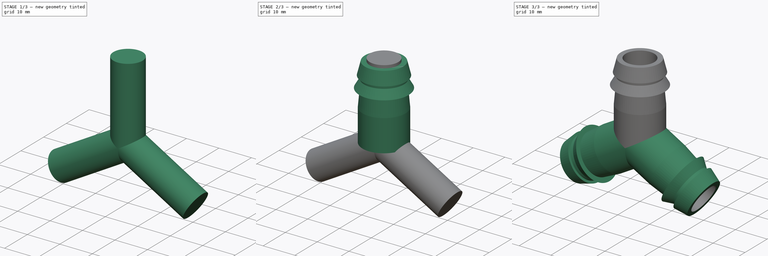
[diagram: build sequence overview — one tinted view per stage of 3, left to right]
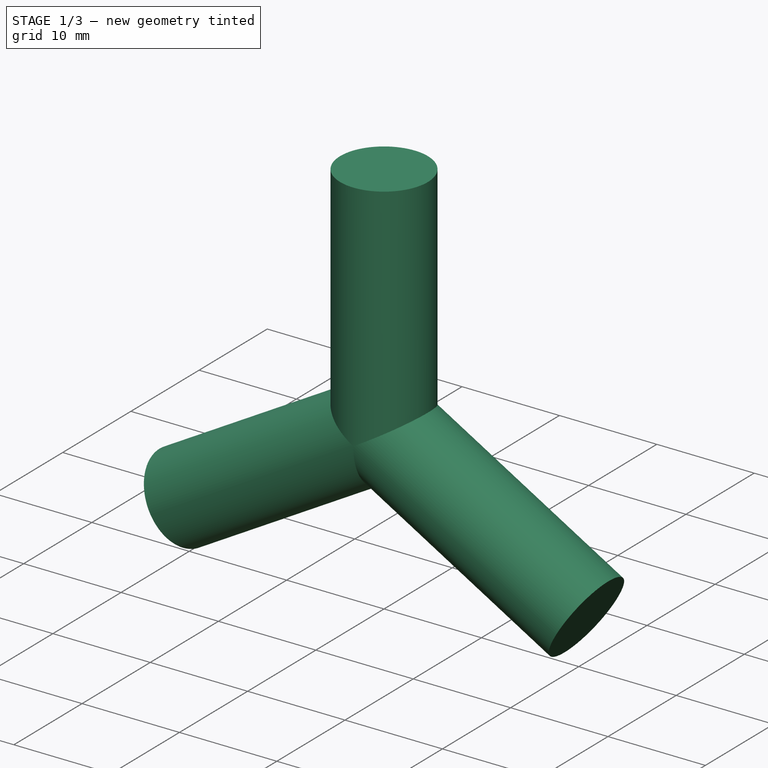
[diagram: stage 1 of 3 — iso view after this stage's code; geometry added in this stage tinted green]
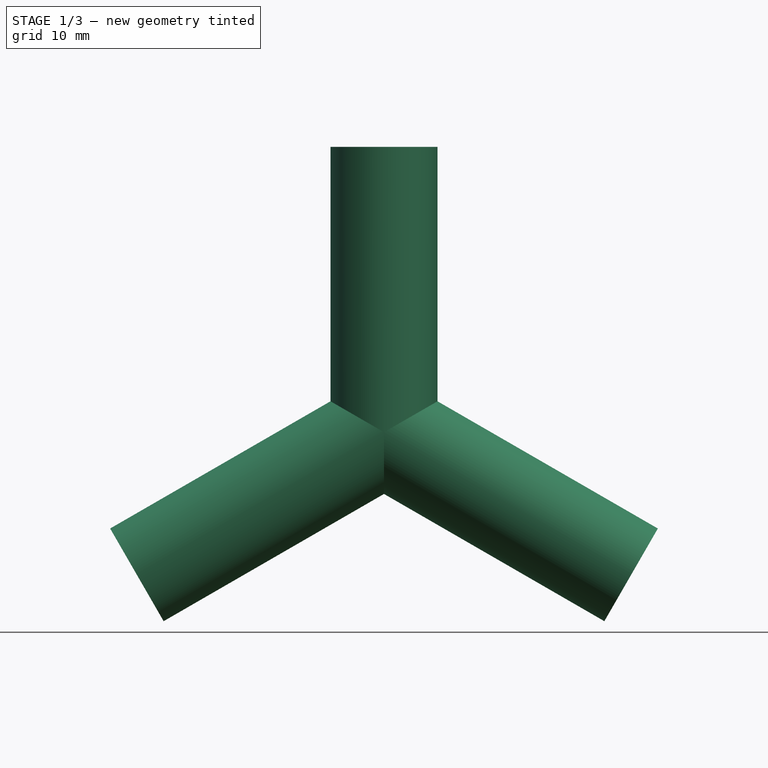
[diagram: stage 1 of 3 — front view after this stage's code; geometry added in this stage tinted green]
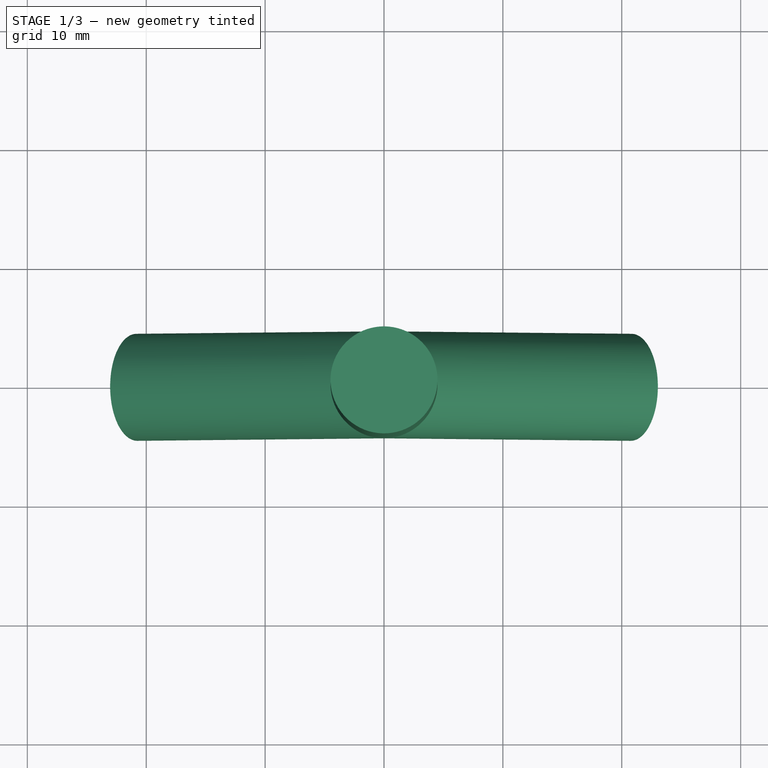
[diagram: stage 1 of 3 — top view after this stage's code; geometry added in this stage tinted green]
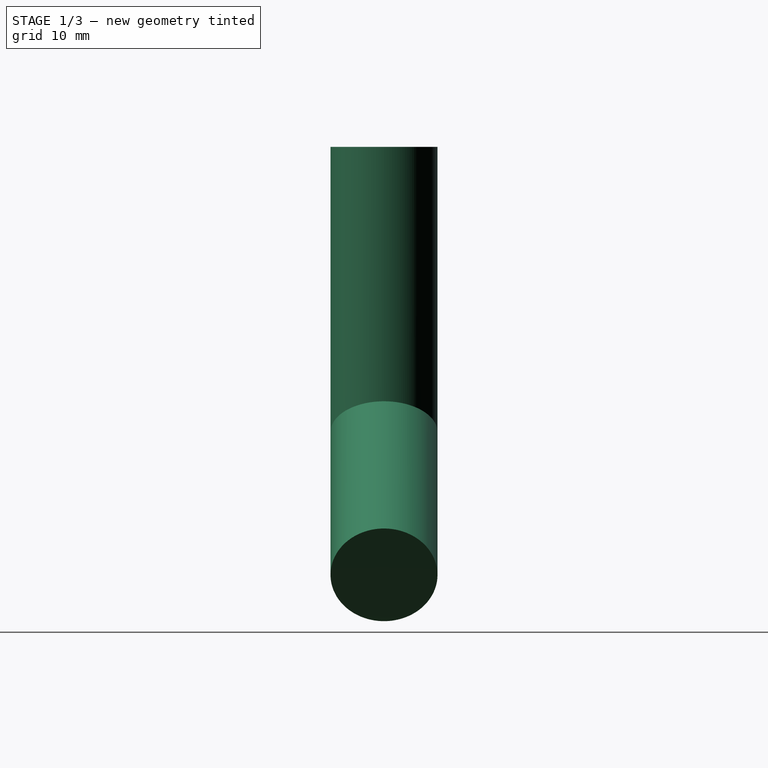
[diagram: stage 1 of 3 — right view after this stage's code; geometry added in this stage tinted green]
FCSTD DOCUMENT  (FreeCAD 2022.430R28641 (Git))
Label: Y split
License: All rights reserved
LicenseURL: http://en.wikipedia.org/wiki/All_rights_reserved
objects: Sketcher::SketchObject×2, PartDesign::Revolution×2, PartDesign::PolarPattern×2, PartDesign::Body×2, Part::Cut×1
note: 17 computed .brp shape members not serialized (recipe doc carries the construction recipe); baked Part::Feature solids carry a one-line shape summary decoded from their .brp

FEATURE [PartDesign::Body] Body
  AutoGroupSolids = false
  ClaimAllChildren = false
  ExportMode = 0
  Group = -> [Sketch,Revolution,PolarPattern]
  Origin = -> Origin
  Tip = -> PolarPattern
  TreeRank = 42
  _ExportChildren = -> [Revolution,PolarPattern]
  _GroupVersion = 1
FEATURE [Sketcher::SketchObject] Sketch001
  FullyConstrained = true
  MapMode = 5
  Placement = pos=(0,0,0) rot=(1,0,0;1.5708rad)
  Support = -> [XZ_Plane001]
  TreeRank = 64
  expr: Constraints[8] = 12mm / 2 - 1.5mm
  sketch-geometry (4):
    g0: LineSegment StartX=4.5 StartY=0 StartZ=0 EndX=4.5 EndY=24 EndZ=0
    g1: LineSegment StartX=4.5 StartY=24 StartZ=0 EndX=0 EndY=24 EndZ=0
    g2: LineSegment StartX=0 StartY=24 StartZ=0 EndX=0 EndY=0 EndZ=0
    g3: LineSegment StartX=0 StartY=0 StartZ=0 EndX=4.5 EndY=0 EndZ=0
  constraints (11):
    c: PointOnObject(g0,g-1)
    c: Vertical(g0)
    c: PointOnObject(g1,g-2)
    c: Horizontal(g1)
    c: Coincident(g1,g2)
    c: Coincident(g2,g-1)
    c: Coincident(g2,g3)
    c: Coincident(g3,g0)
    c: DistanceX(g1) = 4.5
    c: DistanceY(g1) = 24
    c: Coincident(g0,g1)
FEATURE [PartDesign::Revolution] Revolution001
  Angle = 360
  Axis = (0,2e-16,1)
  Base = (0,0,0)
  ClaimChildren = false
  Fit = 0
  FitJoin = 0
  InnerFit = 0
  InnerFitJoin = 0
  NewSolid = false
  Placement = pos=(0,0,0) rot=(1,0,0;1.5708rad)
  Profile = -> Sketch001
  ReferenceAxis = -> Sketch001 [V_Axis]
  Refine = true
  Reversed = true
  Suppress = false
  TreeRank = 65
  _ProfileBasedVersion = 1
FEATURE [PartDesign::PolarPattern] PolarPattern001
  Angle = 360
  Axis = -> Y_Axis001
  BaseFeature = -> Revolution001
  CopyShape = false
  NewSolid = false
  Occurrences = 3
  OriginalSubs = -> [Revolution001]
  Originals = -> [Revolution001]
  ParallelTransform = true
  Placement = pos=(0,0,0) rot=(1,0,0;1.5708rad)
  Refine = true
  SubTransform = true
  Suppress = false
  TreeRank = 66
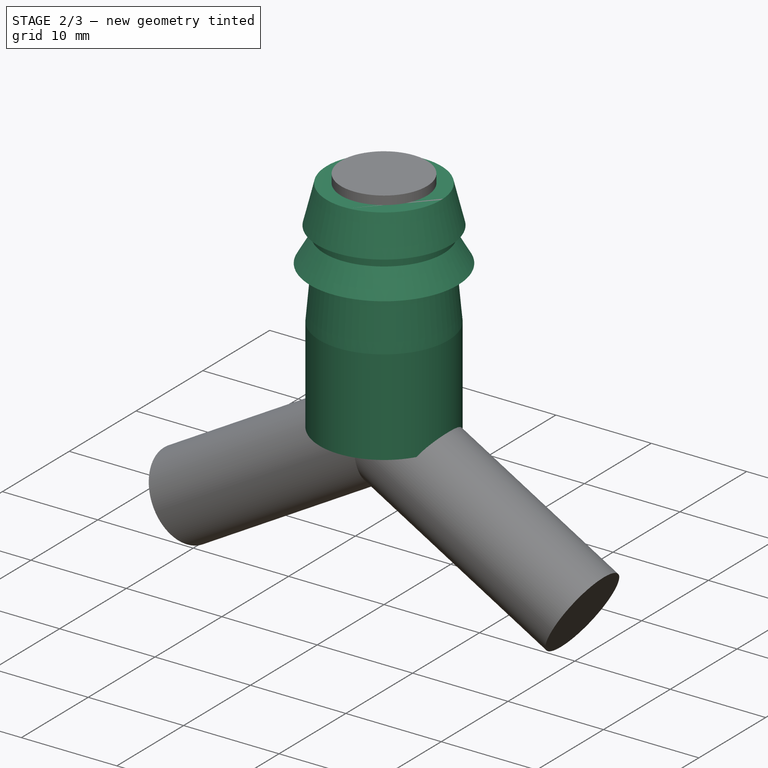
[diagram: stage 2 of 3 — iso view after this stage's code; geometry added in this stage tinted green]
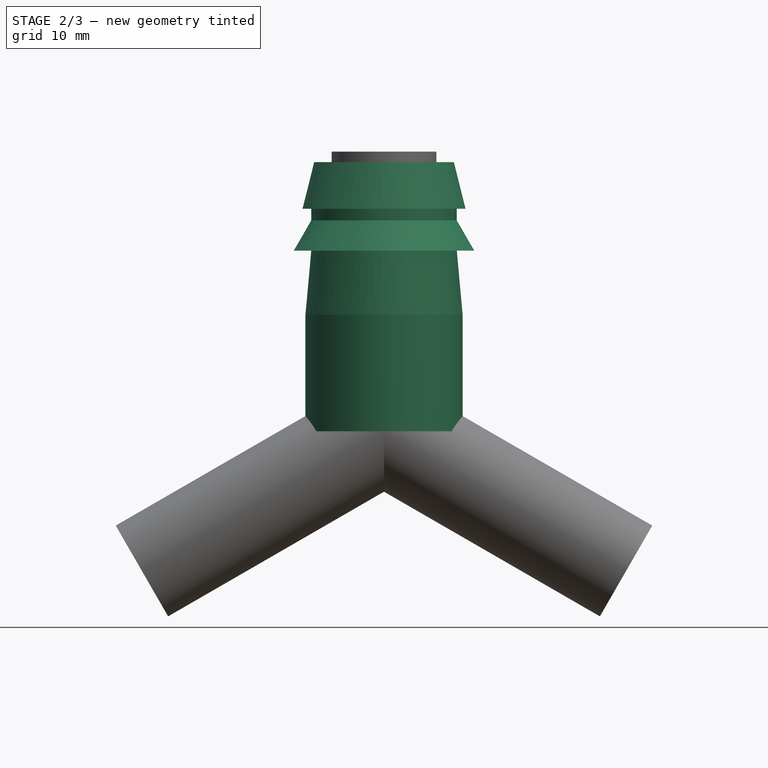
[diagram: stage 2 of 3 — front view after this stage's code; geometry added in this stage tinted green]
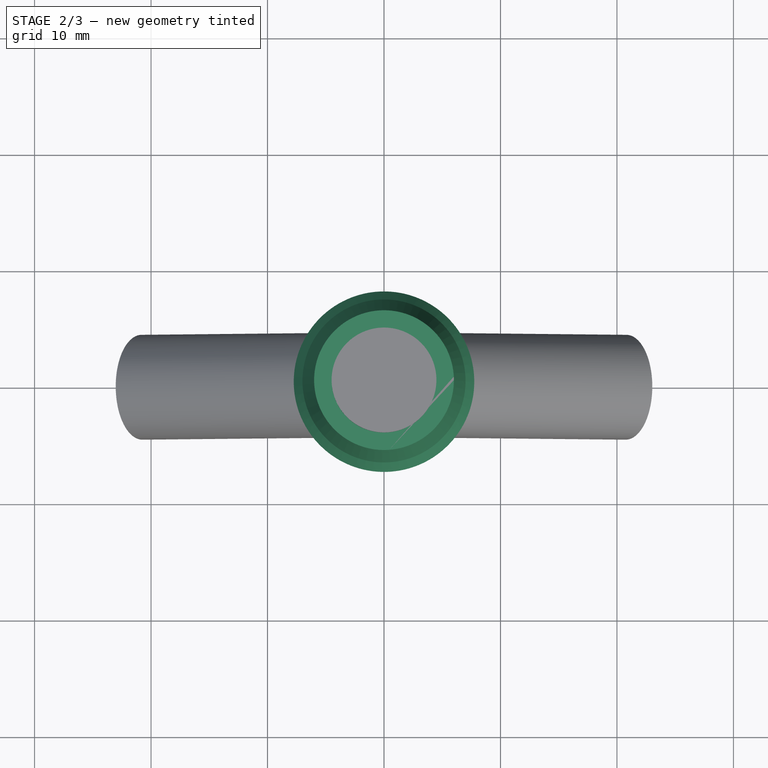
[diagram: stage 2 of 3 — top view after this stage's code; geometry added in this stage tinted green]
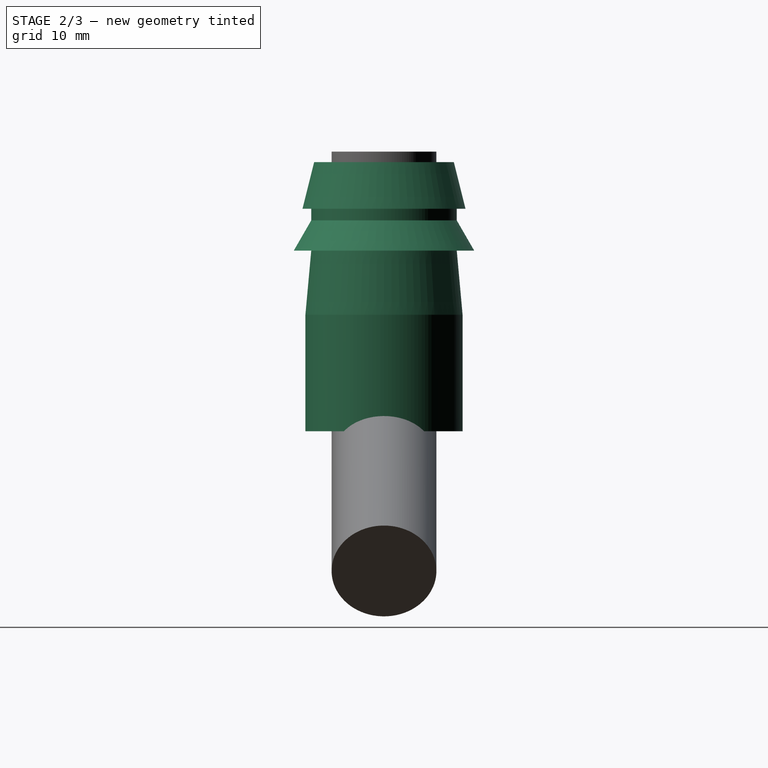
[diagram: stage 2 of 3 — right view after this stage's code; geometry added in this stage tinted green]
FEATURE [Sketcher::SketchObject] Sketch
  FullyConstrained = true
  MapMode = 5
  Placement = pos=(0,0,0) rot=(1,0,0;1.5708rad)
  Support = -> [XZ_Plane]
  TreeRank = 13
  expr: Constraints[19] = 15.5 / 2
  expr: Constraints[23] = 14mm / 2
  expr: Constraints[25] = 12mm / 2
  sketch-geometry (10):
    g0: LineSegment StartX=6.75 StartY=0 StartZ=0 EndX=6.75 EndY=10 EndZ=0
    g1: LineSegment StartX=6.75 StartY=10 StartZ=0 EndX=6.25 EndY=15.5 EndZ=0
    g2: LineSegment StartX=6.25 StartY=15.5 StartZ=0 EndX=7.75 EndY=15.5 EndZ=0
    g3: LineSegment StartX=7.75 StartY=15.5 StartZ=0 EndX=6.25 EndY=18.0981 EndZ=0
    g4: LineSegment StartX=6.25 StartY=18.0981 StartZ=0 EndX=6.25 EndY=19.0981 EndZ=0
    g5: LineSegment StartX=6.25 StartY=19.0981 StartZ=0 EndX=7 EndY=19.0981 EndZ=0
    g6: LineSegment StartX=7 StartY=19.0981 StartZ=0 EndX=6 EndY=23.0981 EndZ=0
    g7: LineSegment StartX=6 StartY=23.0981 StartZ=0 EndX=0 EndY=23.0981 EndZ=0
    g8: LineSegment StartX=0 StartY=23.0981 StartZ=0 EndX=0 EndY=0 EndZ=0
    g9: LineSegment StartX=0 StartY=0 StartZ=0 EndX=6.75 EndY=0 EndZ=0
  constraints (29):
    c: PointOnObject(g0,g-1)
    c: Vertical(g0)
    c: Coincident(g1,g2)
    c: Coincident(g2,g3)
    c: Coincident(g3,g4)
    c: Vertical(g4)
    c: Coincident(g4,g5)
    c: Coincident(g5,g6)
    c: Coincident(g6,g7)
    c: PointOnObject(g7,g-2)
    c: Horizontal(g7)
    c: Coincident(g7,g8)
    c: Coincident(g8,g-1)
    c: Coincident(g8,g9)
    c: Coincident(g9,g0)
    c: DistanceY(g0,g0) = 10
    c: DistanceY(g1,g1) = 5.5
    c: Horizontal(g2)
    c: Horizontal(g5)
    c: DistanceX(g2) = 7.75
    c: Vertical(g3,g1)
    c: Angle(g3) = 2.0944
    c: DistanceY(g4,g4) = 1
    c: DistanceX(g5) = 7
    c: DistanceY(g4,g6) = 4
    c: DistanceX(g6) = 6
    c: DistanceX(g2,g2) = 1.5
    c: DistanceX(g1) = 6.75
    c: Coincident(g0,g1)
FEATURE [PartDesign::Revolution] Revolution
  Angle = 360
  Axis = (0,-2e-16,1)
  Base = (0,0,0)
  ClaimChildren = false
  Fit = 0
  FitJoin = 0
  InnerFit = 0
  InnerFitJoin = 0
  NewSolid = false
  Placement = pos=(0,0,0) rot=(1,0,0;1.5708rad)
  Profile = -> Sketch
  ReferenceAxis = -> Sketch [V_Axis]
  Refine = true
  Reversed = true
  Suppress = false
  TreeRank = 14
  _ProfileBasedVersion = 1
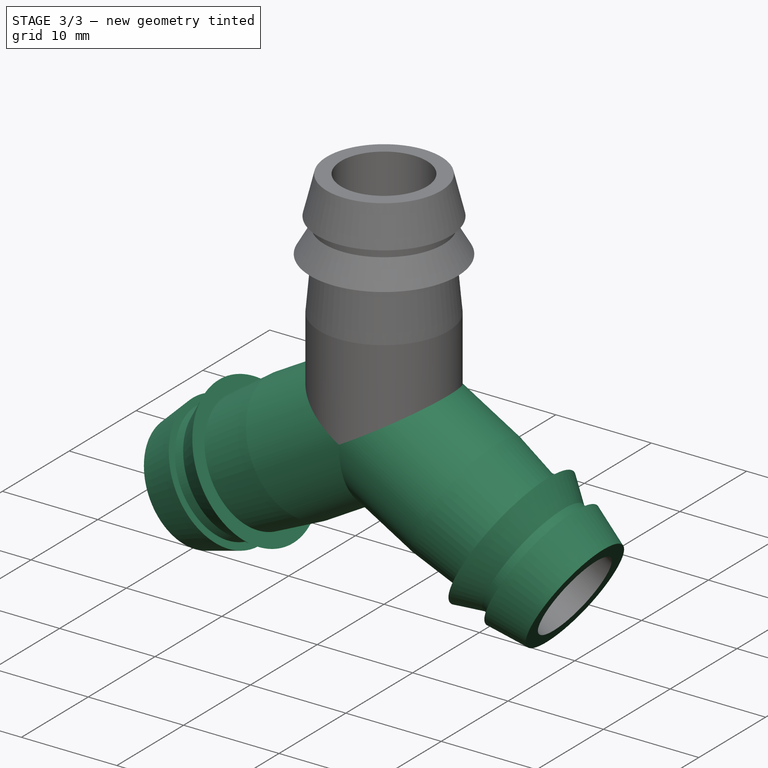
[diagram: stage 3 of 3 — iso view after this stage's code; geometry added in this stage tinted green]
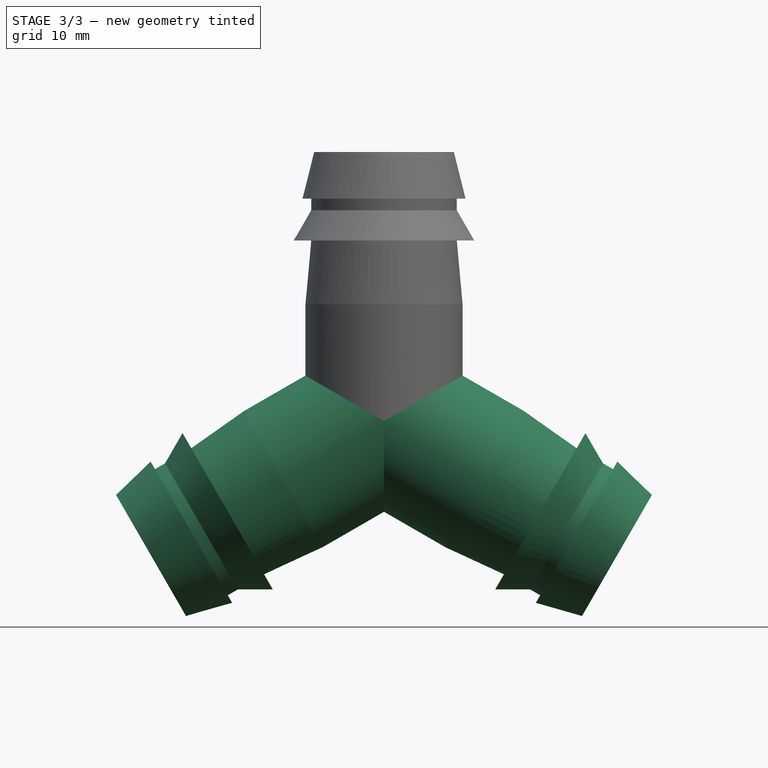
[diagram: stage 3 of 3 — front view after this stage's code; geometry added in this stage tinted green]
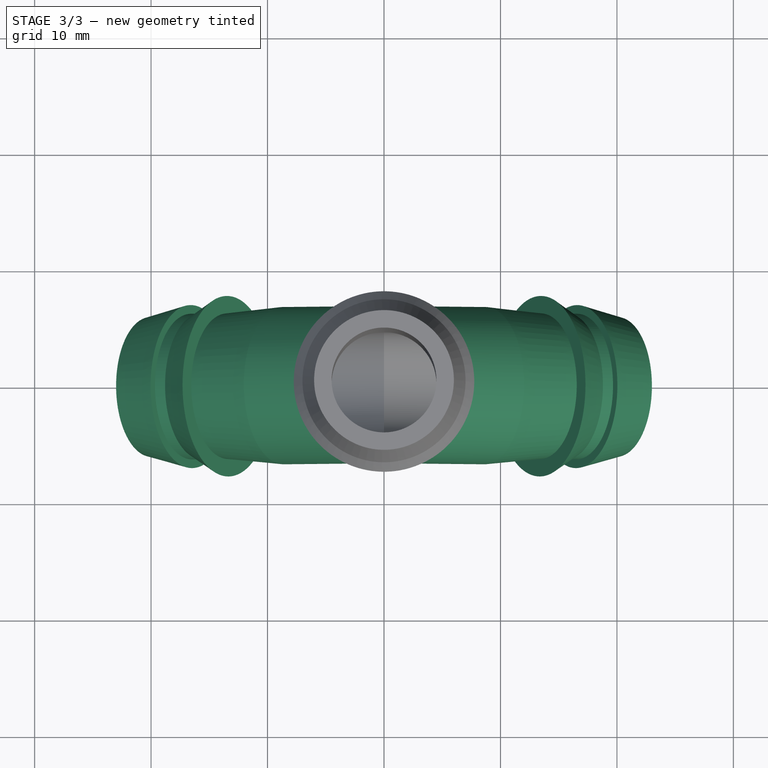
[diagram: stage 3 of 3 — top view after this stage's code; geometry added in this stage tinted green]
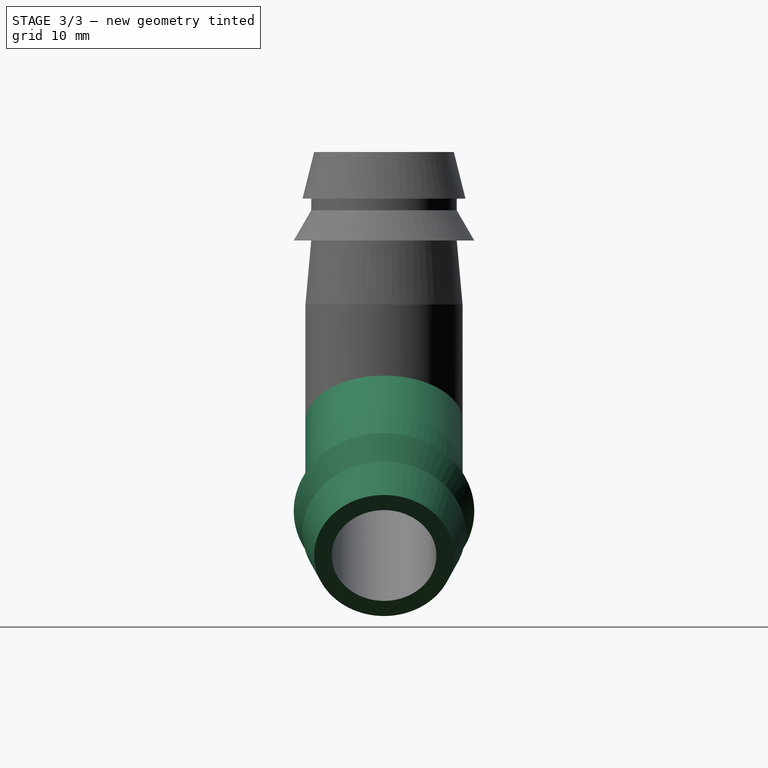
[diagram: stage 3 of 3 — right view after this stage's code; geometry added in this stage tinted green]
FEATURE [PartDesign::PolarPattern] PolarPattern
  Angle = 360
  Axis = -> Sketch [N_Axis]
  BaseFeature = -> Revolution
  CopyShape = false
  NewSolid = false
  Occurrences = 3
  OriginalSubs = -> [Revolution]
  Originals = -> [Revolution]
  ParallelTransform = true
  Placement = pos=(0,0,0) rot=(1,0,0;1.5708rad)
  Refine = true
  SubTransform = true
  Suppress = false
  TreeRank = 43
FEATURE [PartDesign::Body] Body001
  AutoGroupSolids = false
  ClaimAllChildren = false
  ExportMode = 0
  Group = -> [Sketch001,Revolution001,PolarPattern001]
  Origin = -> Origin001
  Tip = -> PolarPattern001
  TreeRank = 57
  _ExportChildren = -> [Revolution001,PolarPattern001]
  _GroupVersion = 1
FEATURE [Part::Cut] Cut
  Base = -> Body
  Refine = true
  Tool = -> Body001
  TreeRank = 67
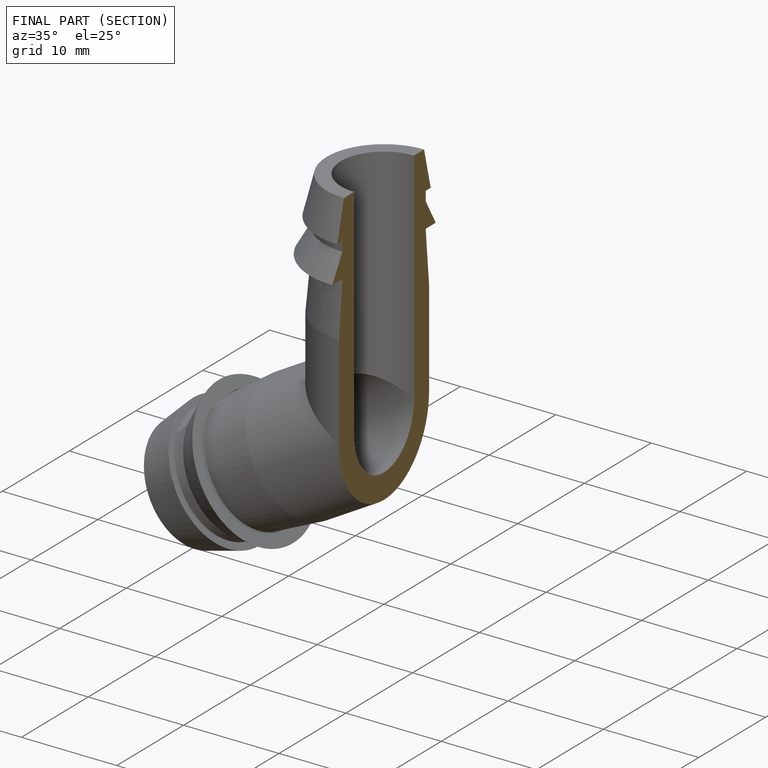
[diagram: finished part — half-section view (interior)]
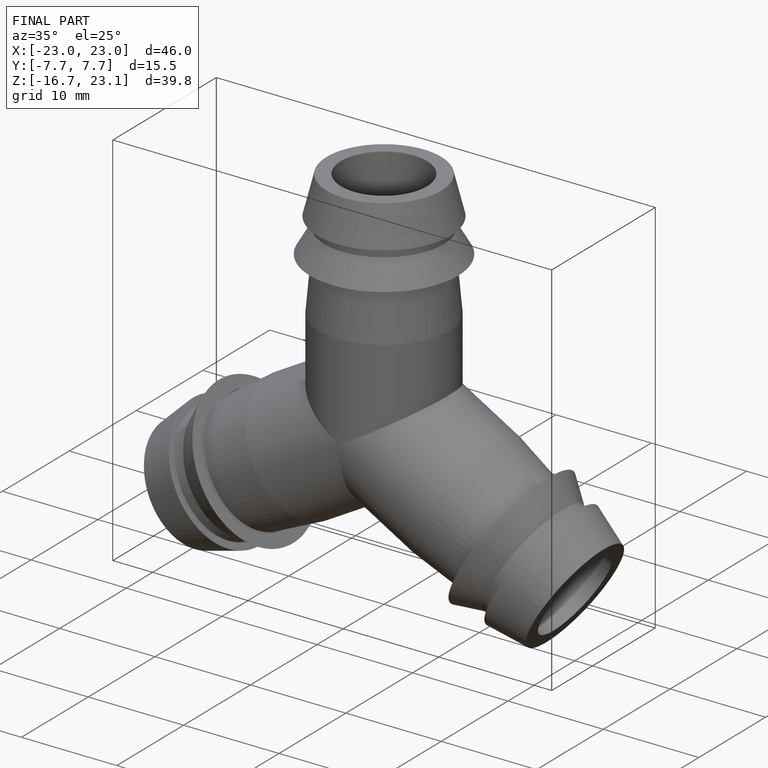
[diagram: finished part — iso view with bounding-box wireframe]
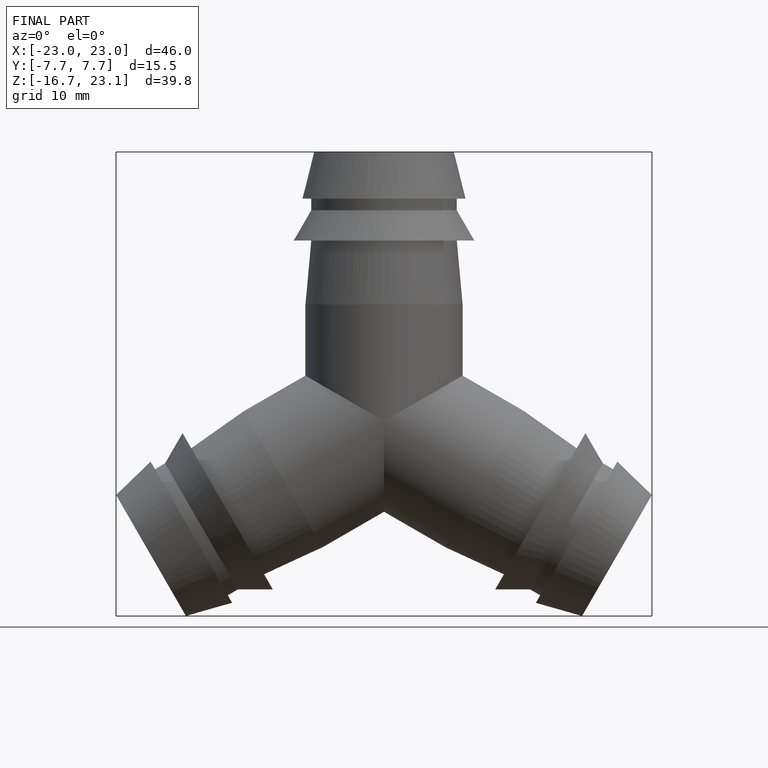
[diagram: finished part — front view with bounding-box wireframe]
